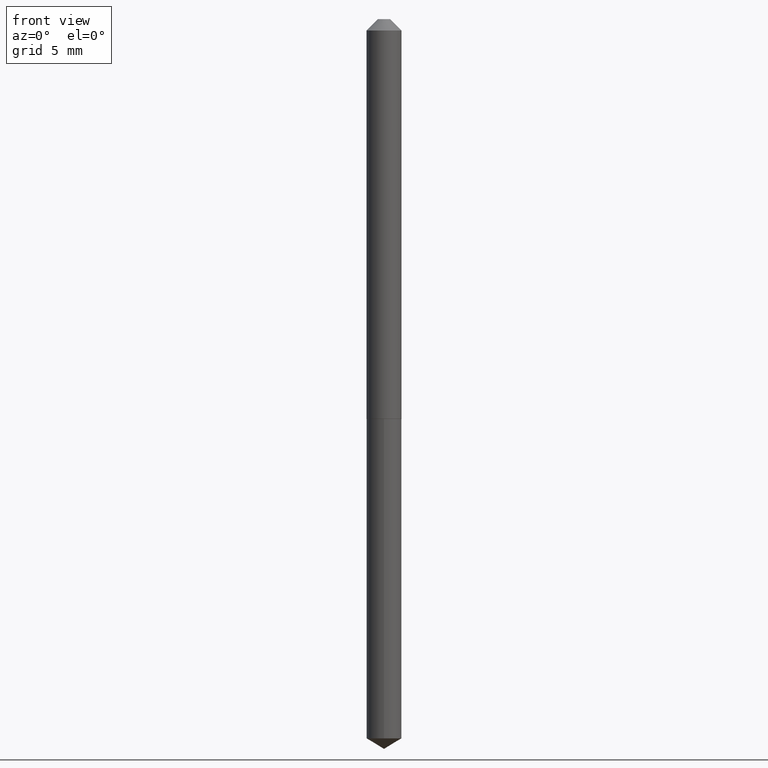
[diagram: clean part render]
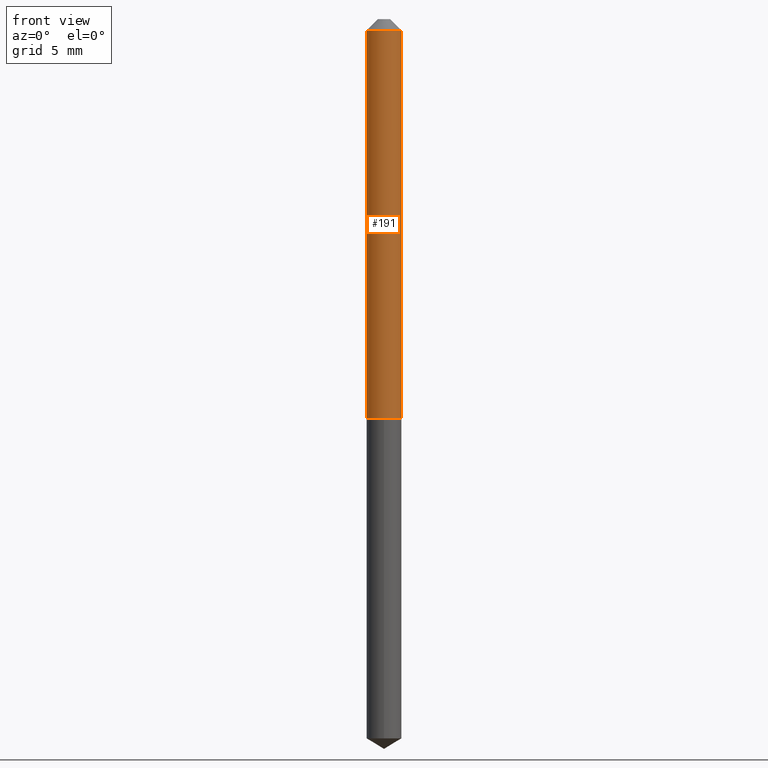
[diagram: same view with one face highlighted and labeled with its STEP entity id]
A machine part, front view. The second image highlights one B-rep face of the part: STEP entity #191.
In plain terms, the highlighted cylindrical surface (edge-blend (fillet) strip) has radius 1.2192 mm, axis along (-0, 0, 1).
Its self-contained STEP definition (entity closure, byte-faithful):
#7 = VERTEX_POINT ( 'NONE', #349 ) ;
#10 = DIRECTION ( 'NONE',  ( -2.445468806185136877E-29, 3.491481338843145188E-15, 1.000000000000000000 ) ) ;
#21 = DIRECTION ( 'NONE',  ( 1.000000000000000000, -6.982962677686265922E-15, 4.876176775795935793E-29 ) ) ;
#37 = VECTOR ( 'NONE', #10, 39.37007874015748143 ) ;
#48 = DIRECTION ( 'NONE',  ( -2.445468806185136597E-29, 3.491481338843145583E-15, 1.000000000000000000 ) ) ;
#53 = EDGE_CURVE ( 'NONE', #357, #7, #161, .T. ) ;
#54 = FACE_OUTER_BOUND ( 'NONE', #313, .T. ) ;
#61 = ORIENTED_EDGE ( 'NONE', *, *, #364, .F. ) ;
#92 = DIRECTION ( 'NONE',  ( -2.445468806185136877E-29, 3.491481338843145188E-15, 1.000000000000000000 ) ) ;
#111 = CARTESIAN_POINT ( 'NONE',  ( 2.679011077175817397E-29, -3.824917806702665780E-15, -1.095499999999999918 ) ) ;
#112 = AXIS2_PLACEMENT_3D ( 'NONE', #120, #336, #244 ) ;
#120 = CARTESIAN_POINT ( 'NONE',  ( 7.642090019328601786E-31, -1.091087918388490144E-16, -0.03125000000000020123 ) ) ;
#137 = CIRCLE ( 'NONE', #112, 0.04800000000000000794 ) ;
#144 = DIRECTION ( 'NONE',  ( -2.445468806185136597E-29, 3.491481338843145583E-15, 1.000000000000000000 ) ) ;
#149 = VECTOR ( 'NONE', #92, 39.37007874015748143 ) ;
#153 = ORIENTED_EDGE ( 'NONE', *, *, #344, .F. ) ;
#161 = LINE ( 'NONE', #347, #37 ) ;
#187 = VERTEX_POINT ( 'NONE', #325 ) ;
#191 = ADVANCED_FACE ( 'NONE', ( #54 ), #295, .T. ) ;
#202 = CARTESIAN_POINT ( 'NONE',  ( 0.000000000000000000, 0.000000000000000000, 0.000000000000000000 ) ) ;
#216 = CARTESIAN_POINT ( 'NONE',  ( -0.04800000000000000794, -1.625952786105907668E-15, -0.03125000000000020123 ) ) ;
#218 = CARTESIAN_POINT ( 'NONE',  ( 0.04800000000000013284, -4.160100015231607087E-15, -1.095499999999999918 ) ) ;
#235 = EDGE_CURVE ( 'NONE', #187, #357, #247, .T. ) ;
#239 = ORIENTED_EDGE ( 'NONE', *, *, #53, .T. ) ;
#241 = AXIS2_PLACEMENT_3D ( 'NONE', #202, #144, #21 ) ;
#244 = DIRECTION ( 'NONE',  ( 1.000000000000000000, -6.982962677686266711E-15, 0.000000000000000000 ) ) ;
#247 = CIRCLE ( 'NONE', #296, 0.04800000000000013284 ) ;
#295 = CYLINDRICAL_SURFACE ( 'NONE', #241, 0.04800000000000007733 ) ;
#296 = AXIS2_PLACEMENT_3D ( 'NONE', #111, #48, #323 ) ;
#309 = ORIENTED_EDGE ( 'NONE', *, *, #235, .T. ) ;
#313 = EDGE_LOOP ( 'NONE', ( #61, #309, #239, #153 ) ) ;
#323 = DIRECTION ( 'NONE',  ( 1.000000000000000000, -6.982962677686262766E-15, 0.000000000000000000 ) ) ;
#325 = CARTESIAN_POINT ( 'NONE',  ( -0.04800000000000013284, -3.483857293537816599E-15, -1.095499999999999918 ) ) ;
#331 = LINE ( 'NONE', #359, #149 ) ;
#333 = VERTEX_POINT ( 'NONE', #216 ) ;
#336 = DIRECTION ( 'NONE',  ( -2.445468806185136597E-29, 3.491481338843145583E-15, 1.000000000000000000 ) ) ;
#344 = EDGE_CURVE ( 'NONE', #333, #7, #137, .T. ) ;
#347 = CARTESIAN_POINT ( 'NONE',  ( 0.04800000000000007733, -3.351822085289413070E-16, 2.340564852382052838E-30 ) ) ;
#349 = CARTESIAN_POINT ( 'NONE',  ( 0.04800000000000000794, -4.442910003677899146E-16, -0.03125000000000020123 ) ) ;
#357 = VERTEX_POINT ( 'NONE', #218 ) ;
#359 = CARTESIAN_POINT ( 'NONE',  ( -0.04800000000000007733, 3.410605131648486387E-16, -2.361088843322358304E-30 ) ) ;
#364 = EDGE_CURVE ( 'NONE', #187, #333, #331, .T. ) ;